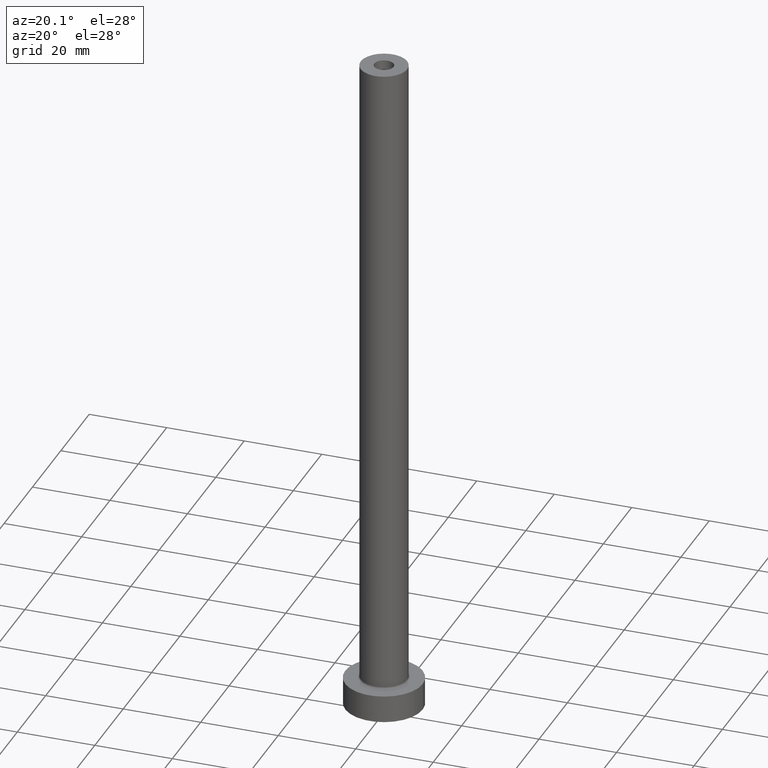
[diagram: clean part render]
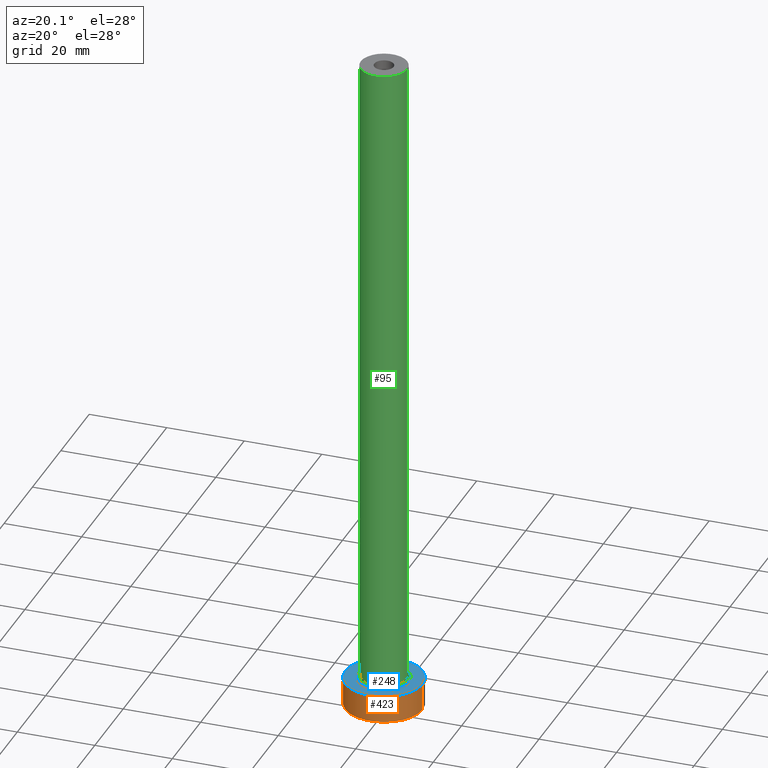
[diagram: same view with three faces highlighted in distinct colors, each labeled with its STEP entity id]
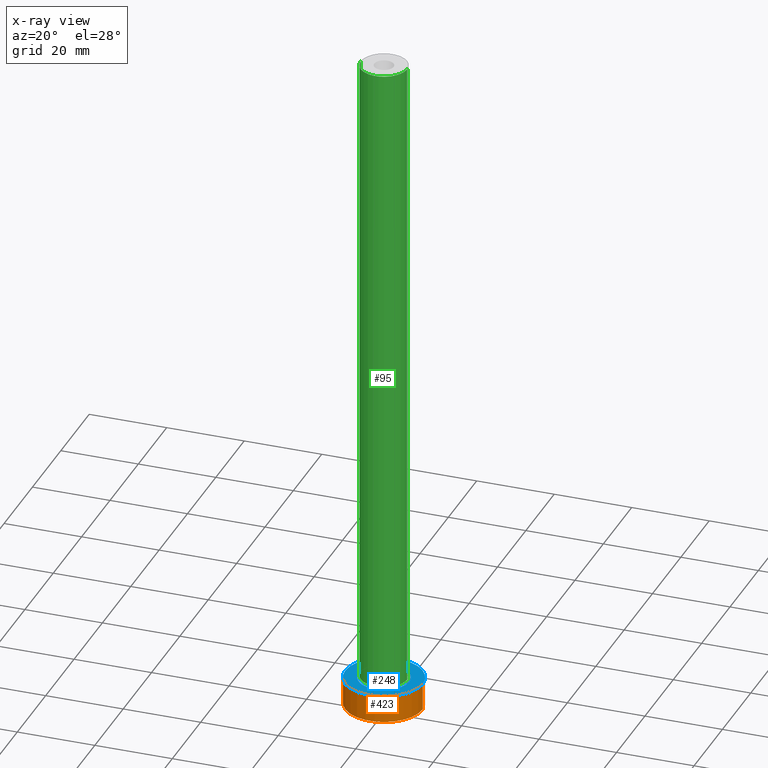
[diagram: x-ray of the same camera — body ghosted, the three highlighted faces saturated]
A machine part, auxiliary view with three faces highlighted in distinct colors.
The next image is the same camera in x-ray (body ghosted, the three faces saturated) — at least one of them is partly hidden behind the body in this view.
Their STEP definitions:

[orange] entity #423 — the highlighted cylindrical surface (partial cylindrical patch) has radius 10 mm, axis along (-0, -0, -1).
#3 = EDGE_CURVE ( 'NONE', #329, #367, #446, .T. ) ;
#23 = CIRCLE ( 'NONE', #235, 10.00000000000000000 ) ;
#42 = CARTESIAN_POINT ( 'NONE',  ( 0.000000000000000000, 0.000000000000000000, 0.000000000000000000 ) ) ;
#56 = DIRECTION ( 'NONE',  ( 0.000000000000000000, 0.000000000000000000, 1.000000000000000000 ) ) ;
#60 = CYLINDRICAL_SURFACE ( 'NONE', #250, 10.00000000000000000 ) ;
#89 = DIRECTION ( 'NONE',  ( -0.000000000000000000, -0.000000000000000000, -1.000000000000000000 ) ) ;
#97 = CARTESIAN_POINT ( 'NONE',  ( 0.000000000000000000, 0.000000000000000000, 7.000000000000000000 ) ) ;
#103 = EDGE_CURVE ( 'NONE', #357, #367, #23, .T. ) ;
#104 = FACE_OUTER_BOUND ( 'NONE', #444, .T. ) ;
#108 = AXIS2_PLACEMENT_3D ( 'NONE', #395, #424, #422 ) ;
#129 = ORIENTED_EDGE ( 'NONE', *, *, #214, .T. ) ;
#130 = CARTESIAN_POINT ( 'NONE',  ( -10.00000000000000000, 0.000000000000000000, 7.000000000000000000 ) ) ;
#140 = CARTESIAN_POINT ( 'NONE',  ( 10.00000000000000000, 1.224646799147353256E-15, 7.000000000000000000 ) ) ;
#143 = VECTOR ( 'NONE', #89, 1000.000000000000000 ) ;
#191 = CARTESIAN_POINT ( 'NONE',  ( -10.00000000000000000, 0.000000000000000000, 7.000000000000000000 ) ) ;
#214 = EDGE_CURVE ( 'NONE', #262, #357, #299, .T. ) ;
#227 = VECTOR ( 'NONE', #280, 1000.000000000000000 ) ;
#235 = AXIS2_PLACEMENT_3D ( 'NONE', #42, #56, #441 ) ;
#242 = DIRECTION ( 'NONE',  ( -0.000000000000000000, -0.000000000000000000, -1.000000000000000000 ) ) ;
#247 = DIRECTION ( 'NONE',  ( -1.000000000000000000, 0.000000000000000000, 0.000000000000000000 ) ) ;
#250 = AXIS2_PLACEMENT_3D ( 'NONE', #97, #242, #247 ) ;
#262 = VERTEX_POINT ( 'NONE', #191 ) ;
#276 = CARTESIAN_POINT ( 'NONE',  ( 10.00000000000000000, 1.224646799147353256E-15, 7.000000000000000000 ) ) ;
#280 = DIRECTION ( 'NONE',  ( -0.000000000000000000, -0.000000000000000000, -1.000000000000000000 ) ) ;
#299 = LINE ( 'NONE', #130, #143 ) ;
#305 = CIRCLE ( 'NONE', #108, 10.00000000000000000 ) ;
#308 = CARTESIAN_POINT ( 'NONE',  ( -10.00000000000000000, 0.000000000000000000, 0.000000000000000000 ) ) ;
#327 = ORIENTED_EDGE ( 'NONE', *, *, #3, .F. ) ;
#329 = VERTEX_POINT ( 'NONE', #276 ) ;
#331 = ORIENTED_EDGE ( 'NONE', *, *, #103, .T. ) ;
#348 = CARTESIAN_POINT ( 'NONE',  ( 10.00000000000000000, 1.224646799147353256E-15, 0.000000000000000000 ) ) ;
#357 = VERTEX_POINT ( 'NONE', #308 ) ;
#367 = VERTEX_POINT ( 'NONE', #348 ) ;
#370 = ORIENTED_EDGE ( 'NONE', *, *, #445, .F. ) ;
#395 = CARTESIAN_POINT ( 'NONE',  ( 0.000000000000000000, 0.000000000000000000, 7.000000000000000000 ) ) ;
#422 = DIRECTION ( 'NONE',  ( 1.000000000000000000, 0.000000000000000000, 0.000000000000000000 ) ) ;
#423 = ADVANCED_FACE ( 'NONE', ( #104 ), #60, .T. ) ;
#424 = DIRECTION ( 'NONE',  ( 0.000000000000000000, 0.000000000000000000, 1.000000000000000000 ) ) ;
#441 = DIRECTION ( 'NONE',  ( 1.000000000000000000, 0.000000000000000000, 0.000000000000000000 ) ) ;
#444 = EDGE_LOOP ( 'NONE', ( #327, #370, #129, #331 ) ) ;
#445 = EDGE_CURVE ( 'NONE', #262, #329, #305, .T. ) ;
#446 = LINE ( 'NONE', #140, #227 ) ;

[blue] entity #248 — the highlighted planar face has unit normal (0, 0, 1).
#7 = CIRCLE ( 'NONE', #374, 6.500000000000000888 ) ;
#20 = DIRECTION ( 'NONE',  ( -0.000000000000000000, -0.000000000000000000, -1.000000000000000000 ) ) ;
#21 = EDGE_LOOP ( 'NONE', ( #301, #66 ) ) ;
#52 = DIRECTION ( 'NONE',  ( 1.000000000000000000, 0.000000000000000000, -0.000000000000000000 ) ) ;
#63 = DIRECTION ( 'NONE',  ( -0.000000000000000000, -0.000000000000000000, -1.000000000000000000 ) ) ;
#65 = CARTESIAN_POINT ( 'NONE',  ( 0.000000000000000000, 0.000000000000000000, 7.000000000000000000 ) ) ;
#66 = ORIENTED_EDGE ( 'NONE', *, *, #268, .T. ) ;
#91 = PLANE ( 'NONE',  #122 ) ;
#94 = ORIENTED_EDGE ( 'NONE', *, *, #445, .T. ) ;
#98 = CIRCLE ( 'NONE', #381, 10.00000000000000000 ) ;
#106 = DIRECTION ( 'NONE',  ( 0.000000000000000000, 0.000000000000000000, 1.000000000000000000 ) ) ;
#108 = AXIS2_PLACEMENT_3D ( 'NONE', #395, #424, #422 ) ;
#122 = AXIS2_PLACEMENT_3D ( 'NONE', #339, #369, #52 ) ;
#155 = VERTEX_POINT ( 'NONE', #363 ) ;
#167 = DIRECTION ( 'NONE',  ( 1.000000000000000000, 0.000000000000000000, 0.000000000000000000 ) ) ;
#169 = ORIENTED_EDGE ( 'NONE', *, *, #284, .T. ) ;
#191 = CARTESIAN_POINT ( 'NONE',  ( -10.00000000000000000, 0.000000000000000000, 7.000000000000000000 ) ) ;
#203 = EDGE_CURVE ( 'NONE', #155, #303, #7, .T. ) ;
#204 = CARTESIAN_POINT ( 'NONE',  ( -6.500000000000000888, 7.960204194457796463E-16, 7.000000000000002665 ) ) ;
#248 = ADVANCED_FACE ( 'NONE', ( #366, #372 ), #91, .T. ) ;
#249 = CARTESIAN_POINT ( 'NONE',  ( 0.000000000000000000, 0.000000000000000000, 7.000000000000000000 ) ) ;
#262 = VERTEX_POINT ( 'NONE', #191 ) ;
#268 = EDGE_CURVE ( 'NONE', #303, #155, #436, .T. ) ;
#276 = CARTESIAN_POINT ( 'NONE',  ( 10.00000000000000000, 1.224646799147353256E-15, 7.000000000000000000 ) ) ;
#284 = EDGE_CURVE ( 'NONE', #329, #262, #98, .T. ) ;
#297 = AXIS2_PLACEMENT_3D ( 'NONE', #65, #63, #167 ) ;
#301 = ORIENTED_EDGE ( 'NONE', *, *, #203, .T. ) ;
#303 = VERTEX_POINT ( 'NONE', #204 ) ;
#305 = CIRCLE ( 'NONE', #108, 10.00000000000000000 ) ;
#329 = VERTEX_POINT ( 'NONE', #276 ) ;
#334 = CARTESIAN_POINT ( 'NONE',  ( 0.000000000000000000, 0.000000000000000000, 7.000000000000000000 ) ) ;
#339 = CARTESIAN_POINT ( 'NONE',  ( 0.000000000000000000, 0.000000000000000000, 7.000000000000000000 ) ) ;
#363 = CARTESIAN_POINT ( 'NONE',  ( 6.500000000000000888, 0.000000000000000000, 7.000000000000002665 ) ) ;
#366 = FACE_BOUND ( 'NONE', #21, .T. ) ;
#369 = DIRECTION ( 'NONE',  ( 0.000000000000000000, 0.000000000000000000, 1.000000000000000000 ) ) ;
#372 = FACE_OUTER_BOUND ( 'NONE', #440, .T. ) ;
#374 = AXIS2_PLACEMENT_3D ( 'NONE', #334, #20, #442 ) ;
#381 = AXIS2_PLACEMENT_3D ( 'NONE', #249, #106, #447 ) ;
#395 = CARTESIAN_POINT ( 'NONE',  ( 0.000000000000000000, 0.000000000000000000, 7.000000000000000000 ) ) ;
#422 = DIRECTION ( 'NONE',  ( 1.000000000000000000, 0.000000000000000000, 0.000000000000000000 ) ) ;
#424 = DIRECTION ( 'NONE',  ( 0.000000000000000000, 0.000000000000000000, 1.000000000000000000 ) ) ;
#436 = CIRCLE ( 'NONE', #297, 6.500000000000000888 ) ;
#440 = EDGE_LOOP ( 'NONE', ( #94, #169 ) ) ;
#442 = DIRECTION ( 'NONE',  ( 1.000000000000000000, 0.000000000000000000, 0.000000000000000000 ) ) ;
#445 = EDGE_CURVE ( 'NONE', #262, #329, #305, .T. ) ;
#447 = DIRECTION ( 'NONE',  ( 1.000000000000000000, 0.000000000000000000, 0.000000000000000000 ) ) ;

[green] entity #95 — the highlighted cylindrical surface (edge-blend (fillet) strip) has radius 6 mm, axis along (-0, -0, -1).
#2 = LINE ( 'NONE', #429, #175 ) ;
#9 = ORIENTED_EDGE ( 'NONE', *, *, #116, .F. ) ;
#48 = DIRECTION ( 'NONE',  ( -0.000000000000000000, -0.000000000000000000, -1.000000000000000000 ) ) ;
#51 = EDGE_CURVE ( 'NONE', #90, #160, #80, .T. ) ;
#53 = CARTESIAN_POINT ( 'NONE',  ( 6.000000000000000888, 7.347880794884119736E-16, 175.0000000000000284 ) ) ;
#57 = VERTEX_POINT ( 'NONE', #224 ) ;
#71 = EDGE_CURVE ( 'NONE', #90, #336, #2, .T. ) ;
#79 = DIRECTION ( 'NONE',  ( -0.000000000000000000, -0.000000000000000000, -1.000000000000000000 ) ) ;
#80 = CIRCLE ( 'NONE', #341, 6.000000000000000888 ) ;
#90 = VERTEX_POINT ( 'NONE', #185 ) ;
#93 = DIRECTION ( 'NONE',  ( -0.000000000000000000, -0.000000000000000000, -1.000000000000000000 ) ) ;
#95 = ADVANCED_FACE ( 'NONE', ( #154 ), #325, .T. ) ;
#102 = CARTESIAN_POINT ( 'NONE',  ( -6.000000000000000888, 0.000000000000000000, 7.500000000000007105 ) ) ;
#116 = EDGE_CURVE ( 'NONE', #160, #57, #128, .T. ) ;
#128 = LINE ( 'NONE', #53, #137 ) ;
#137 = VECTOR ( 'NONE', #93, 1000.000000000000000 ) ;
#150 = CIRCLE ( 'NONE', #293, 6.000000000000000888 ) ;
#154 = FACE_OUTER_BOUND ( 'NONE', #259, .T. ) ;
#159 = DIRECTION ( 'NONE',  ( 1.000000000000000000, 0.000000000000000000, 0.000000000000000000 ) ) ;
#160 = VERTEX_POINT ( 'NONE', #197 ) ;
#175 = VECTOR ( 'NONE', #48, 1000.000000000000000 ) ;
#185 = CARTESIAN_POINT ( 'NONE',  ( -6.000000000000000888, 0.000000000000000000, 175.0000000000000284 ) ) ;
#187 = CARTESIAN_POINT ( 'NONE',  ( 0.000000000000000000, 0.000000000000000000, 175.0000000000000284 ) ) ;
#188 = ORIENTED_EDGE ( 'NONE', *, *, #217, .T. ) ;
#197 = CARTESIAN_POINT ( 'NONE',  ( 6.000000000000000888, 7.347880794884119736E-16, 175.0000000000000284 ) ) ;
#217 = EDGE_CURVE ( 'NONE', #336, #57, #150, .T. ) ;
#224 = CARTESIAN_POINT ( 'NONE',  ( 6.000000000000000888, 7.347880794884119736E-16, 7.500000000000007105 ) ) ;
#226 = CARTESIAN_POINT ( 'NONE',  ( 0.000000000000000000, 0.000000000000000000, 175.0000000000000284 ) ) ;
#239 = CARTESIAN_POINT ( 'NONE',  ( 0.000000000000000000, 0.000000000000000000, 7.500000000000007105 ) ) ;
#258 = DIRECTION ( 'NONE',  ( 1.000000000000000000, 0.000000000000000000, 0.000000000000000000 ) ) ;
#259 = EDGE_LOOP ( 'NONE', ( #9, #434, #265, #188 ) ) ;
#265 = ORIENTED_EDGE ( 'NONE', *, *, #71, .T. ) ;
#293 = AXIS2_PLACEMENT_3D ( 'NONE', #239, #438, #159 ) ;
#320 = AXIS2_PLACEMENT_3D ( 'NONE', #226, #79, #432 ) ;
#322 = DIRECTION ( 'NONE',  ( 0.000000000000000000, 0.000000000000000000, 1.000000000000000000 ) ) ;
#325 = CYLINDRICAL_SURFACE ( 'NONE', #320, 6.000000000000000888 ) ;
#336 = VERTEX_POINT ( 'NONE', #102 ) ;
#341 = AXIS2_PLACEMENT_3D ( 'NONE', #187, #322, #258 ) ;
#429 = CARTESIAN_POINT ( 'NONE',  ( -6.000000000000000888, 0.000000000000000000, 175.0000000000000284 ) ) ;
#432 = DIRECTION ( 'NONE',  ( -1.000000000000000000, 0.000000000000000000, 0.000000000000000000 ) ) ;
#434 = ORIENTED_EDGE ( 'NONE', *, *, #51, .F. ) ;
#438 = DIRECTION ( 'NONE',  ( 0.000000000000000000, 0.000000000000000000, 1.000000000000000000 ) ) ;